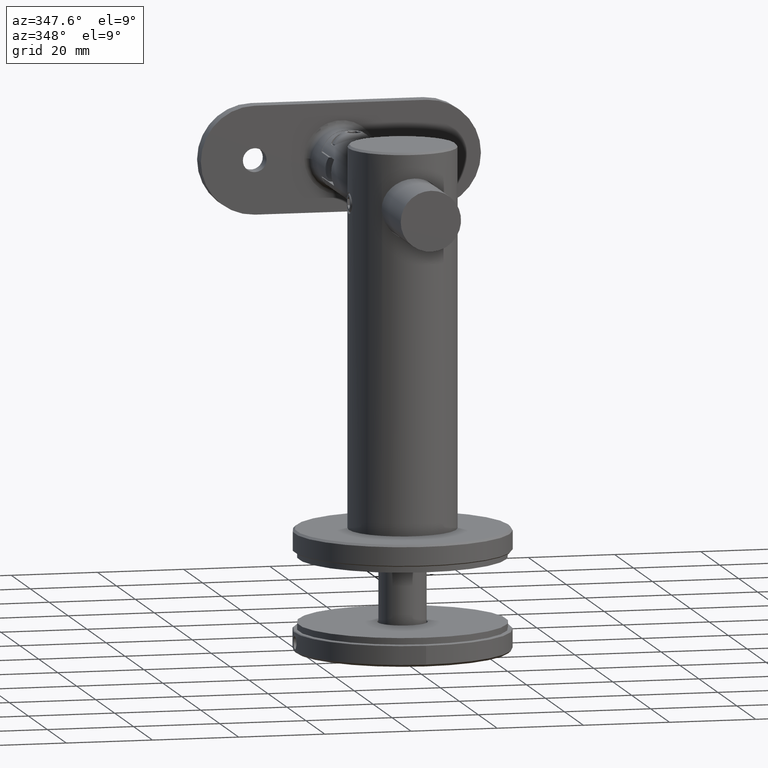
[diagram: clean part render]
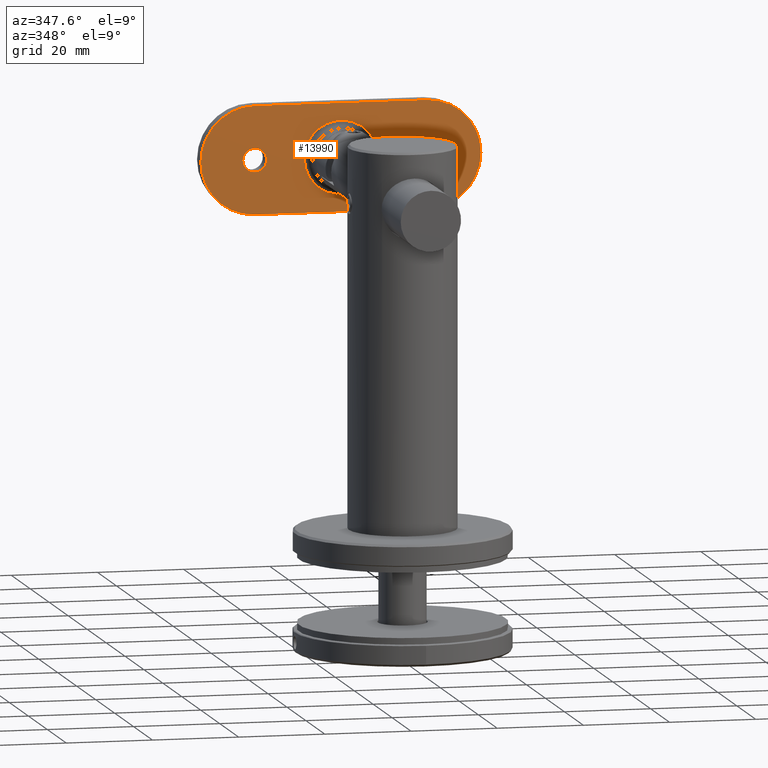
[diagram: same view with one face highlighted and labeled with its STEP entity id]
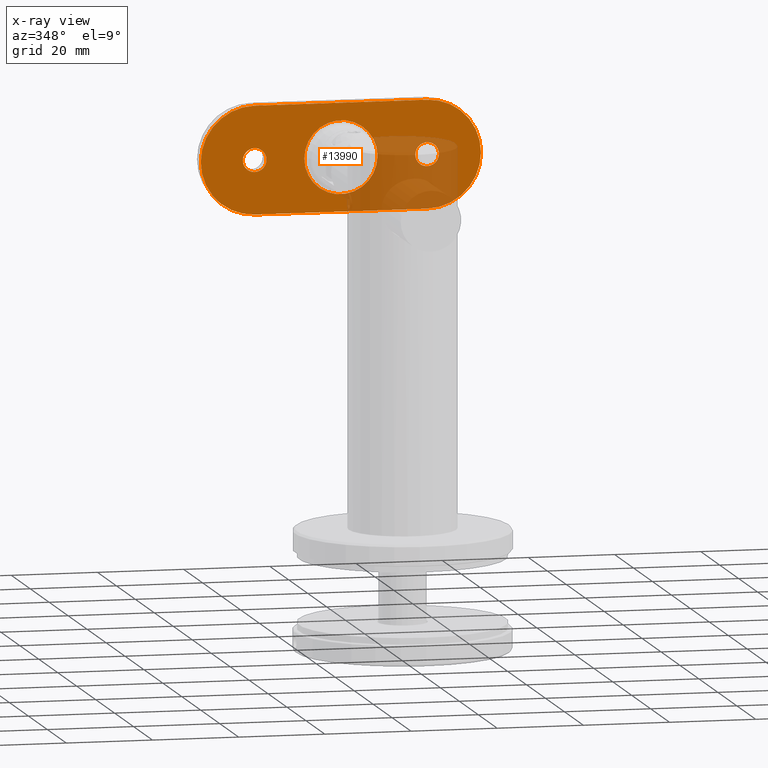
[diagram: x-ray of the same camera — body ghosted, the highlighted face saturated]
A machine part, auxiliary view. The second image highlights one B-rep face of the part: STEP entity #13990.
The next image is the same camera in x-ray: the body ghosted, the highlighted face saturated — about 27% of this face is hidden behind the body in this view.
In plain terms, the highlighted planar face has unit normal (0, 1, 0).
Its self-contained STEP definition (entity closure, byte-faithful):
#157 = CIRCLE ( 'NONE', #9942, 2.749999999999999100 ) ;
#166 = CARTESIAN_POINT ( 'NONE',  ( -12.50000000000000000, -3.370833141065685400E-015, -20.00000000000000400 ) ) ;
#313 = CARTESIAN_POINT ( 'NONE',  ( 12.50000000000000000, -3.370833141065685400E-015, 20.00000000000000000 ) ) ;
#972 = CARTESIAN_POINT ( 'NONE',  ( 0.0000000000000000000, -3.370833141065685400E-015, 20.00000000000000000 ) ) ;
#1040 = DIRECTION ( 'NONE',  ( -0.0000000000000000000, -1.000000000000000000, 0.0000000000000000000 ) ) ;
#1691 = CARTESIAN_POINT ( 'NONE',  ( 0.0000000000000000000, -3.370833141065685400E-015, 20.00000000000000000 ) ) ;
#2454 = AXIS2_PLACEMENT_3D ( 'NONE', #20732, #12643, #6362 ) ;
#2823 = CIRCLE ( 'NONE', #6022, 2.749999999999999100 ) ;
#2950 = VERTEX_POINT ( 'NONE', #9179 ) ;
#3736 = VERTEX_POINT ( 'NONE', #166 ) ;
#3832 = EDGE_CURVE ( 'NONE', #11481, #18870, #14212, .T. ) ;
#3941 = VERTEX_POINT ( 'NONE', #4548 ) ;
#4339 = DIRECTION ( 'NONE',  ( -0.0000000000000000000, -0.0000000000000000000, -1.000000000000000000 ) ) ;
#4445 = VERTEX_POINT ( 'NONE', #11049 ) ;
#4548 = CARTESIAN_POINT ( 'NONE',  ( 4.694321675334250400E-015, -3.469446951953614200E-015, 22.75000000000000000 ) ) ;
#4581 = EDGE_LOOP ( 'NONE', ( #20608, #7998, #7446, #6990, #14936, #8851 ) ) ;
#4860 = VECTOR ( 'NONE', #16336, 1000.000000000000000 ) ;
#5166 = CARTESIAN_POINT ( 'NONE',  ( 4.694321675334250400E-015, -3.469446951953614200E-015, 20.00000000000000000 ) ) ;
#5178 = EDGE_CURVE ( 'NONE', #2950, #2950, #157, .T. ) ;
#5417 = EDGE_LOOP ( 'NONE', ( #9769 ) ) ;
#5420 = DIRECTION ( 'NONE',  ( 0.0000000000000000000, 0.0000000000000000000, 1.000000000000000000 ) ) ;
#5818 = CARTESIAN_POINT ( 'NONE',  ( 4.694321675334250400E-015, -3.469446951953614200E-015, -20.00000000000000000 ) ) ;
#6022 = AXIS2_PLACEMENT_3D ( 'NONE', #5166, #10104, #13444 ) ;
#6118 = CARTESIAN_POINT ( 'NONE',  ( 0.0000000000000000000, -3.469446951953614200E-015, 0.0000000000000000000 ) ) ;
#6252 = CARTESIAN_POINT ( 'NONE',  ( -12.50000000000000000, -3.370833141065685400E-015, 20.00000000000000000 ) ) ;
#6362 = DIRECTION ( 'NONE',  ( 8.881784197001252300E-016, 0.0000000000000000000, 1.000000000000000000 ) ) ;
#6628 = CARTESIAN_POINT ( 'NONE',  ( 0.0000000000000000000, -3.370833141065685400E-015, -32.50000000000000000 ) ) ;
#6990 = ORIENTED_EDGE ( 'NONE', *, *, #8490, .T. ) ;
#7446 = ORIENTED_EDGE ( 'NONE', *, *, #15949, .T. ) ;
#7753 = DIRECTION ( 'NONE',  ( 0.0000000000000000000, 0.0000000000000000000, 1.000000000000000000 ) ) ;
#7998 = ORIENTED_EDGE ( 'NONE', *, *, #16692, .T. ) ;
#8064 = CARTESIAN_POINT ( 'NONE',  ( 12.50000000000000000, -3.370833141065685400E-015, -20.00000000000000400 ) ) ;
#8086 = DIRECTION ( 'NONE',  ( -0.0000000000000000000, -1.000000000000000000, 0.0000000000000000000 ) ) ;
#8088 = AXIS2_PLACEMENT_3D ( 'NONE', #972, #1040, #18684 ) ;
#8490 = EDGE_CURVE ( 'NONE', #3736, #20848, #9804, .T. ) ;
#8727 = CIRCLE ( 'NONE', #12591, 8.500000000000000000 ) ;
#8851 = ORIENTED_EDGE ( 'NONE', *, *, #11993, .F. ) ;
#9135 = EDGE_LOOP ( 'NONE', ( #15261 ) ) ;
#9174 = DIRECTION ( 'NONE',  ( 0.0000000000000000000, 1.000000000000000000, 0.0000000000000000000 ) ) ;
#9179 = CARTESIAN_POINT ( 'NONE',  ( 4.694321675334250400E-015, -3.469446951953614200E-015, -17.25000000000000000 ) ) ;
#9769 = ORIENTED_EDGE ( 'NONE', *, *, #14370, .T. ) ;
#9804 = CIRCLE ( 'NONE', #2454, 12.50000000000000000 ) ;
#9942 = AXIS2_PLACEMENT_3D ( 'NONE', #5818, #9174, #12459 ) ;
#10104 = DIRECTION ( 'NONE',  ( 0.0000000000000000000, 1.000000000000000000, 0.0000000000000000000 ) ) ;
#10449 = PLANE ( 'NONE',  #10815 ) ;
#10508 = FACE_OUTER_BOUND ( 'NONE', #4581, .T. ) ;
#10683 = EDGE_LOOP ( 'NONE', ( #12836 ) ) ;
#10815 = AXIS2_PLACEMENT_3D ( 'NONE', #18411, #12351, #17110 ) ;
#11049 = CARTESIAN_POINT ( 'NONE',  ( 0.0000000000000000000, -3.469446951953614200E-015, 8.500000000000000000 ) ) ;
#11481 = VERTEX_POINT ( 'NONE', #313 ) ;
#11845 = AXIS2_PLACEMENT_3D ( 'NONE', #1691, #8086, #14444 ) ;
#11993 = EDGE_CURVE ( 'NONE', #11481, #12588, #15826, .T. ) ;
#12351 = DIRECTION ( 'NONE',  ( 0.0000000000000000000, 1.000000000000000000, -0.0000000000000000000 ) ) ;
#12459 = DIRECTION ( 'NONE',  ( 0.0000000000000000000, 0.0000000000000000000, 1.000000000000000000 ) ) ;
#12588 = VERTEX_POINT ( 'NONE', #8064 ) ;
#12591 = AXIS2_PLACEMENT_3D ( 'NONE', #6118, #14037, #7753 ) ;
#12643 = DIRECTION ( 'NONE',  ( -0.0000000000000000000, -1.000000000000000000, 0.0000000000000000000 ) ) ;
#12836 = ORIENTED_EDGE ( 'NONE', *, *, #15329, .T. ) ;
#13063 = FACE_BOUND ( 'NONE', #5417, .T. ) ;
#13444 = DIRECTION ( 'NONE',  ( 0.0000000000000000000, 0.0000000000000000000, 1.000000000000000000 ) ) ;
#13471 = CIRCLE ( 'NONE', #8088, 12.50000000000000000 ) ;
#13496 = CARTESIAN_POINT ( 'NONE',  ( 0.0000000000000000000, -3.469446951953614200E-015, -20.00000000000000400 ) ) ;
#13990 = ADVANCED_FACE ( 'NONE', ( #13063, #19143, #16360, #10508 ), #10449, .F. ) ;
#14037 = DIRECTION ( 'NONE',  ( 0.0000000000000000000, 1.000000000000000000, -0.0000000000000000000 ) ) ;
#14212 = CIRCLE ( 'NONE', #11845, 12.50000000000000000 ) ;
#14370 = EDGE_CURVE ( 'NONE', #4445, #4445, #8727, .T. ) ;
#14444 = DIRECTION ( 'NONE',  ( 0.0000000000000000000, 0.0000000000000000000, 1.000000000000000000 ) ) ;
#14849 = CARTESIAN_POINT ( 'NONE',  ( 12.50000000000000000, -3.370833141065685400E-015, 32.50000000000000000 ) ) ;
#14936 = ORIENTED_EDGE ( 'NONE', *, *, #20351, .T. ) ;
#14963 = CIRCLE ( 'NONE', #16003, 12.50000000000000000 ) ;
#15192 = VERTEX_POINT ( 'NONE', #6252 ) ;
#15202 = DIRECTION ( 'NONE',  ( -0.0000000000000000000, -1.000000000000000000, 0.0000000000000000000 ) ) ;
#15261 = ORIENTED_EDGE ( 'NONE', *, *, #5178, .T. ) ;
#15267 = VECTOR ( 'NONE', #4339, 1000.000000000000000 ) ;
#15329 = EDGE_CURVE ( 'NONE', #3941, #3941, #2823, .T. ) ;
#15826 = LINE ( 'NONE', #14849, #4860 ) ;
#15949 = EDGE_CURVE ( 'NONE', #15192, #3736, #19068, .T. ) ;
#16003 = AXIS2_PLACEMENT_3D ( 'NONE', #13496, #15202, #5420 ) ;
#16336 = DIRECTION ( 'NONE',  ( -0.0000000000000000000, -0.0000000000000000000, -1.000000000000000000 ) ) ;
#16360 = FACE_BOUND ( 'NONE', #9135, .T. ) ;
#16692 = EDGE_CURVE ( 'NONE', #18870, #15192, #13471, .T. ) ;
#16958 = CARTESIAN_POINT ( 'NONE',  ( 0.0000000000000000000, -3.370833141065685400E-015, 32.50000000000000000 ) ) ;
#17110 = DIRECTION ( 'NONE',  ( 0.0000000000000000000, 0.0000000000000000000, 1.000000000000000000 ) ) ;
#18411 = CARTESIAN_POINT ( 'NONE',  ( 12.50000000000000000, -3.370833141065685400E-015, 32.50000000000000000 ) ) ;
#18684 = DIRECTION ( 'NONE',  ( 0.0000000000000000000, 0.0000000000000000000, 1.000000000000000000 ) ) ;
#18870 = VERTEX_POINT ( 'NONE', #16958 ) ;
#19007 = CARTESIAN_POINT ( 'NONE',  ( -12.50000000000000000, -3.370833141065685400E-015, 32.50000000000000000 ) ) ;
#19068 = LINE ( 'NONE', #19007, #15267 ) ;
#19143 = FACE_BOUND ( 'NONE', #10683, .T. ) ;
#20351 = EDGE_CURVE ( 'NONE', #20848, #12588, #14963, .T. ) ;
#20608 = ORIENTED_EDGE ( 'NONE', *, *, #3832, .T. ) ;
#20732 = CARTESIAN_POINT ( 'NONE',  ( 0.0000000000000000000, -3.469446951953614200E-015, -20.00000000000000400 ) ) ;
#20848 = VERTEX_POINT ( 'NONE', #6628 ) ;